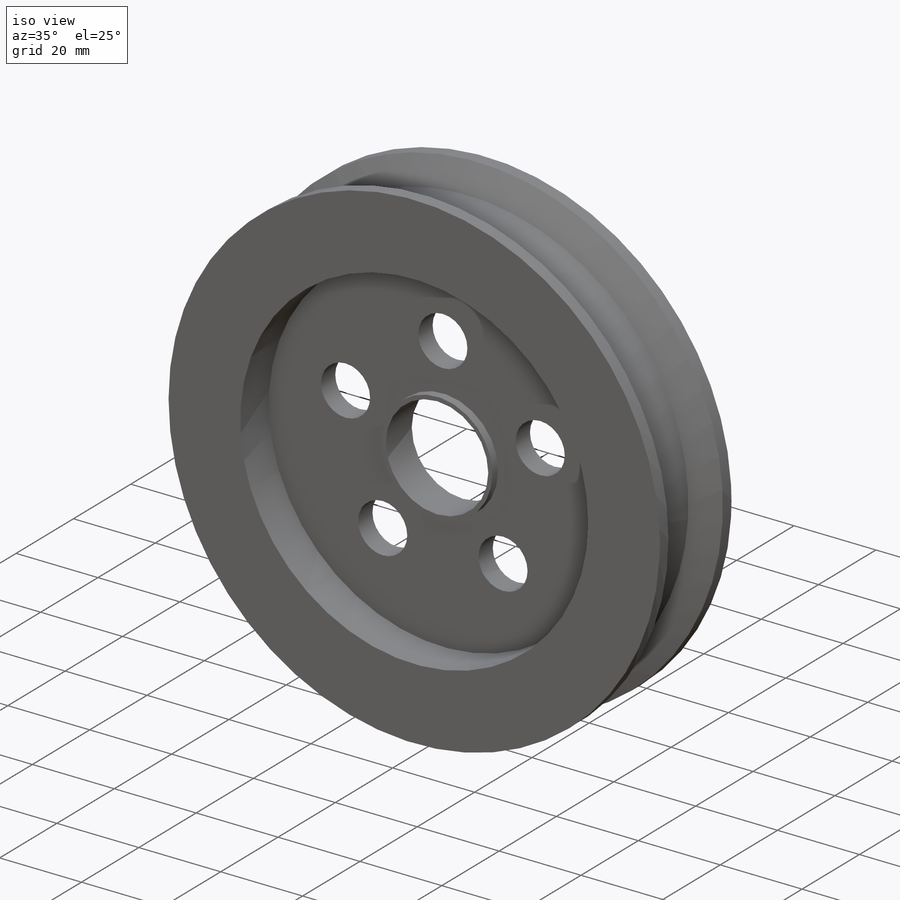
[diagram: iso view]
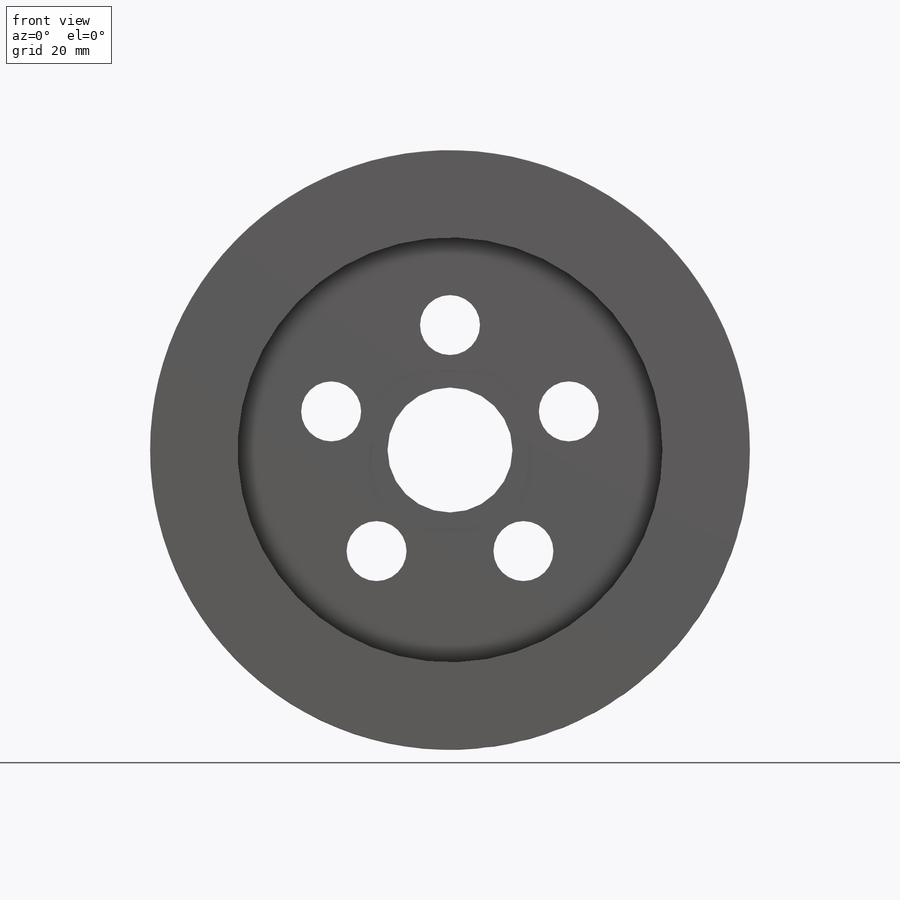
[diagram: front view]
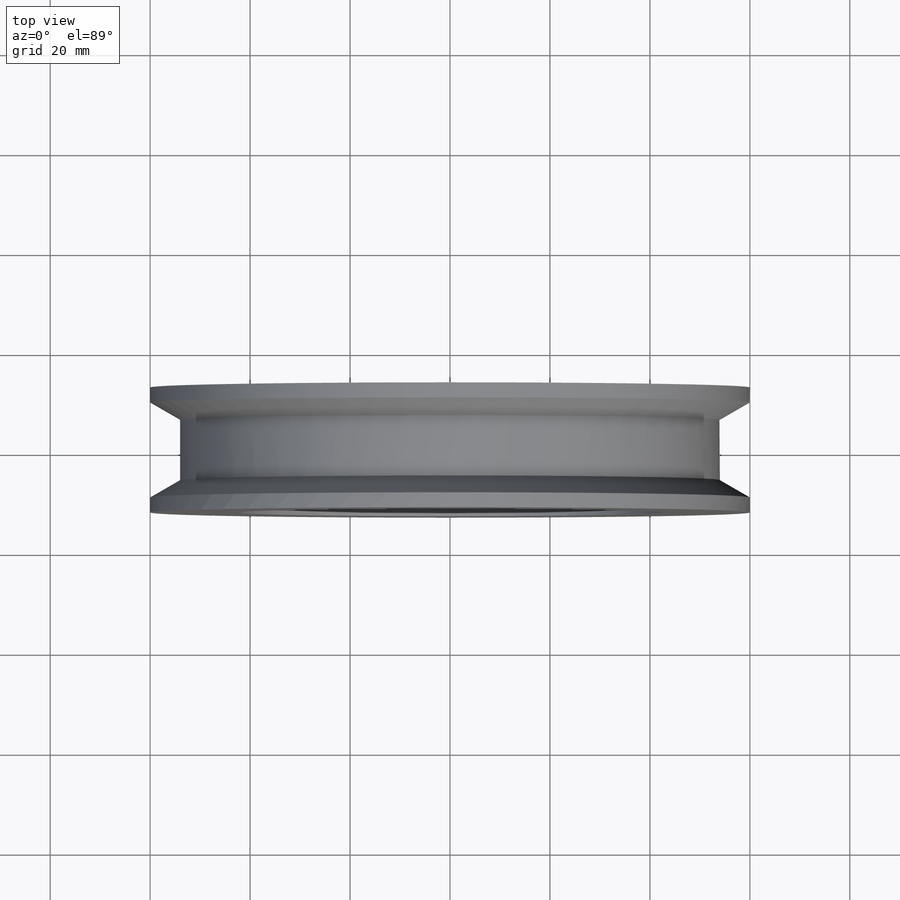
[diagram: top view]
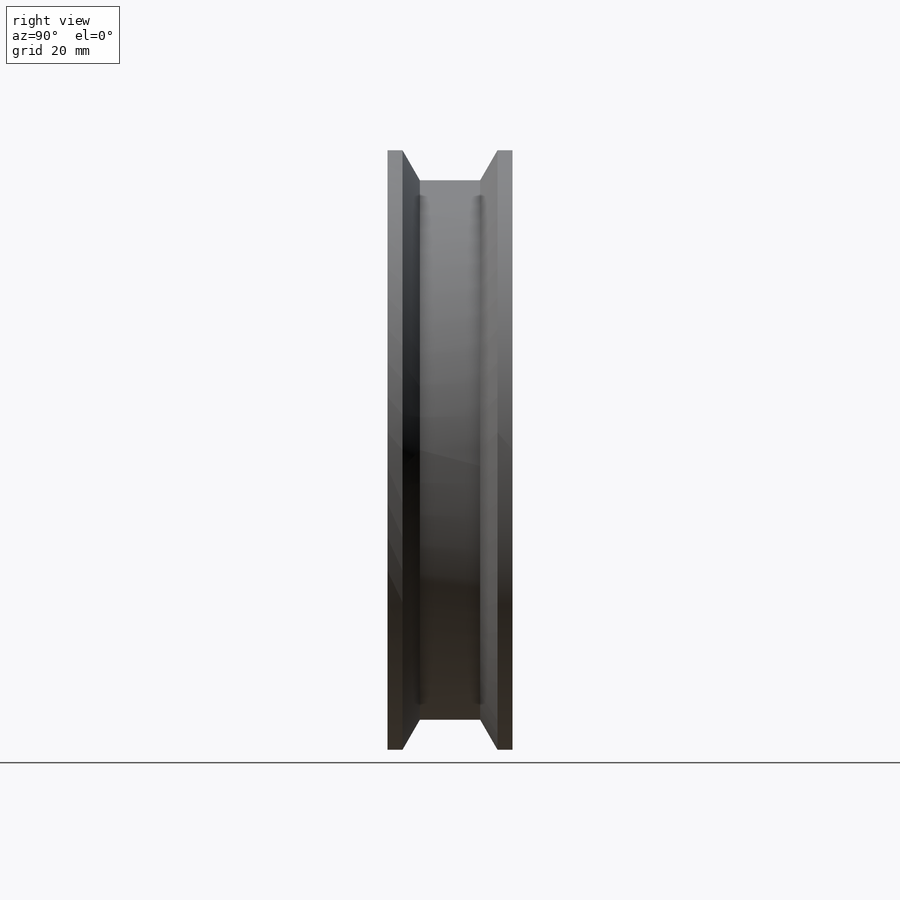
[diagram: right view]
SOLIDWORKS PART (.sldprt)
format: sldprt  version: not decoded by parser v0  size: 215,552 bytes
history: native  units: mm
features: sketch x5, extrude x2, cut_extrude x2, material x1, mirror x1, pattern_circular x1, cut_revolve x1 (+12 scaffold rows collapsed)
feature tree (25):
  scaffold x12  (default folders/planes/origin — collapsed)
  material  "Material <not specified>"
  sketch  "Sketch1"  dims[D1=120.0mm D2=25.0mm]
  extrude  "Boss-Extrude1"  Depth=25mm
  sketch  "Sketch2"  dims[D1=85.0mm]
  cut_extrude  "Cut-Extrude1"  Depth=10mm
  mirror  "Mirror1"
  sketch  "Sketch3"  dims[D2=12.0mm D1=25.0mm]
  cut_extrude  "Cut-Extrude2"  [1 undecoded]
  pattern_circular  "CirPattern1"  Count=5 Angle=360deg
  sketch  "Sketch4"  dims[c1.D1=6.0mm c1.D2=3.0mm c1.D3=3.0mm c1.D4=19.0mm c2.D4=60.0deg c2.D5=6.0mm c3.D5=60.0deg]
  cut_revolve  "Cut-Revolve1"  Angle=360deg
  sketch  "Sketch5"  dims[D1=27.0mm D2=25.0mm]
  extrude  "Boss-Extrude2"  Depth=2mm
decode coverage: 10 of 12 modeling features carry decoded parameters
note: 1 parameter value undecoded
note: suppression state not decoded; provenance and decode notes live in map.json
